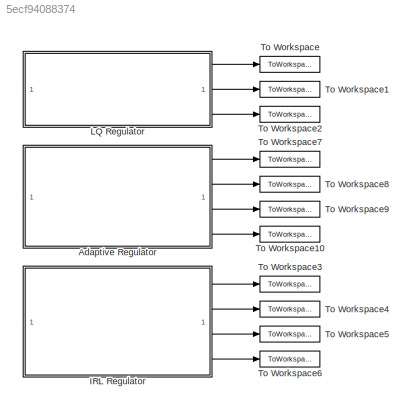
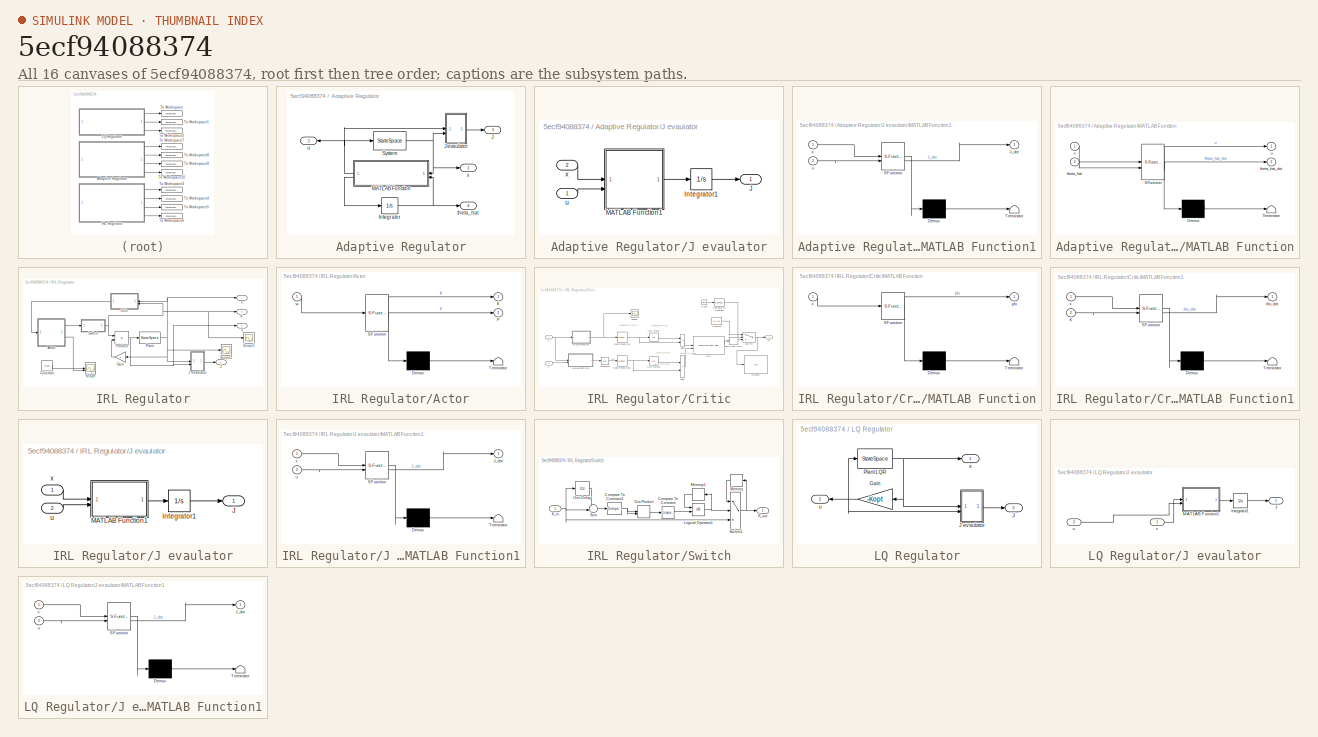
[diagram: thumbnail index - all 16 canvases of the model, root first then tree order]
MODEL slx_5ecf94088374
KIND model
CONFIG AbsTol = auto
CONFIG EnableMultiTasking = off
CONFIG FixedStep = 0.0001
CONFIG MaxStep = auto
CONFIG MinStep = auto
CONFIG RelTol = 1e-3
CONFIG SampleTimeConstraint = Unconstrained
CONFIG SolverName = FixedStepAuto
CONFIG StartTime = 0.0
CONFIG StopTime = 5
BLOCK [SubSystem] Adaptive Regulator
BLOCK [Integrator] Adaptive Regulator/Integrator
  InitialCondition = [0;0]
BLOCK [Outport] Adaptive Regulator/J
  Port = 3
BLOCK [SubSystem] Adaptive Regulator/J evaulator
BLOCK [Integrator] Adaptive Regulator/J evaulator/Integrator1
BLOCK [Outport] Adaptive Regulator/J evaulator/J
BLOCK [SubSystem] Adaptive Regulator/J evaulator/MATLAB Function1
  ErrorFcn = Stateflow.Translate.translate
  LibrarySourceBlock = simulink/User-Defined\nFunctions/MATLAB Function
  PermitHierarchicalResolution = ExplicitOnly
  SFBlockType = MATLAB Function
  TreatAsAtomicUnit = on
BLOCK [Demux] Adaptive Regulator/J evaulator/MATLAB Function1/ Demux 
  Outputs = 1
BLOCK [S-Function] Adaptive Regulator/J evaulator/MATLAB Function1/ SFunction 
  EnableBusSupport = on
  FunctionName = sf_sfun
  Parameters = Q,R
  PortCounts = [2 2]
  SFcnIsStateOwnerBlock = off
  SFunctionDeploymentMode = off
  Tag = Stateflow S-Function 7
BLOCK [Terminator] Adaptive Regulator/J evaulator/MATLAB Function1/ Terminator 
BLOCK [Outport] Adaptive Regulator/J evaulator/MATLAB Function1/J_dot
BLOCK [Inport] Adaptive Regulator/J evaulator/MATLAB Function1/u
  Port = 2
BLOCK [Inport] Adaptive Regulator/J evaulator/MATLAB Function1/x
BLOCK [Inport] Adaptive Regulator/J evaulator/u
BLOCK [Inport] Adaptive Regulator/J evaulator/x
  Port = 2
BLOCK [SubSystem] Adaptive Regulator/MATLAB Function
  ErrorFcn = Stateflow.Translate.translate
  LibrarySourceBlock = simulink/User-Defined\nFunctions/MATLAB Function
  NameLocation = top
  PermitHierarchicalResolution = ExplicitOnly
  SFBlockType = MATLAB Function
  TreatAsAtomicUnit = on
BLOCK [Demux] Adaptive Regulator/MATLAB Function/ Demux 
  Outputs = 1
BLOCK [S-Function] Adaptive Regulator/MATLAB Function/ SFunction 
  EnableBusSupport = on
  FunctionName = sf_sfun
  Parameters = B,Pa
  PortCounts = [2 3]
  SFcnIsStateOwnerBlock = off
  SFunctionDeploymentMode = off
  Tag = Stateflow S-Function 6
BLOCK [Terminator] Adaptive Regulator/MATLAB Function/ Terminator 
BLOCK [Inport] Adaptive Regulator/MATLAB Function/theta_hat
  Port = 2
BLOCK [Outport] Adaptive Regulator/MATLAB Function/theta_hat_dot
  Port = 2
BLOCK [Outport] Adaptive Regulator/MATLAB Function/u
BLOCK [Inport] Adaptive Regulator/MATLAB Function/x
BLOCK [StateSpace] Adaptive Regulator/System
  A = A
  B = B
  C = eye(2)
  D = [0;0]
  InitialCondition = [10;5]
BLOCK [Outport] Adaptive Regulator/theta_hat
  Port = 4
BLOCK [Outport] Adaptive Regulator/u
  NameLocation = top
  Port = 2
BLOCK [Outport] Adaptive Regulator/x
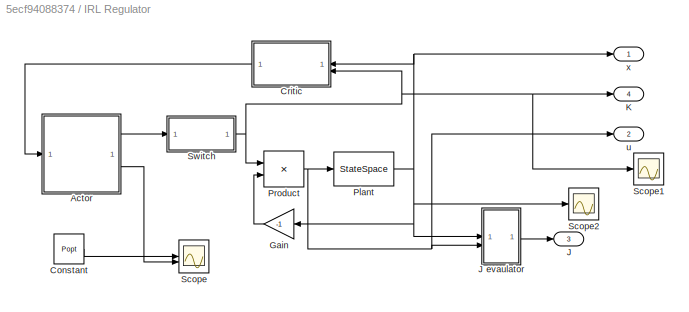
BLOCK [SubSystem] IRL Regulator
BLOCK [SubSystem] IRL Regulator/Actor
  ErrorFcn = Stateflow.Translate.translate
  PermitHierarchicalResolution = ExplicitOnly
  SFBlockType = MATLAB Function
  TreatAsAtomicUnit = on
BLOCK [Demux] IRL Regulator/Actor/ Demux 
  Outputs = 1
BLOCK [S-Function] IRL Regulator/Actor/ SFunction 
  EnableBusSupport = on
  FunctionName = sf_sfun
  Parameters = B,R
  PortCounts = [1 3]
  SFcnIsStateOwnerBlock = off
  SFunctionDeploymentMode = off
  Tag = Stateflow S-Function 1
BLOCK [Terminator] IRL Regulator/Actor/ Terminator 
BLOCK [Outport] IRL Regulator/Actor/K
BLOCK [Outport] IRL Regulator/Actor/P
  Port = 2
BLOCK [Inport] IRL Regulator/Actor/w
BLOCK [Constant] IRL Regulator/Constant
  Value = Popt
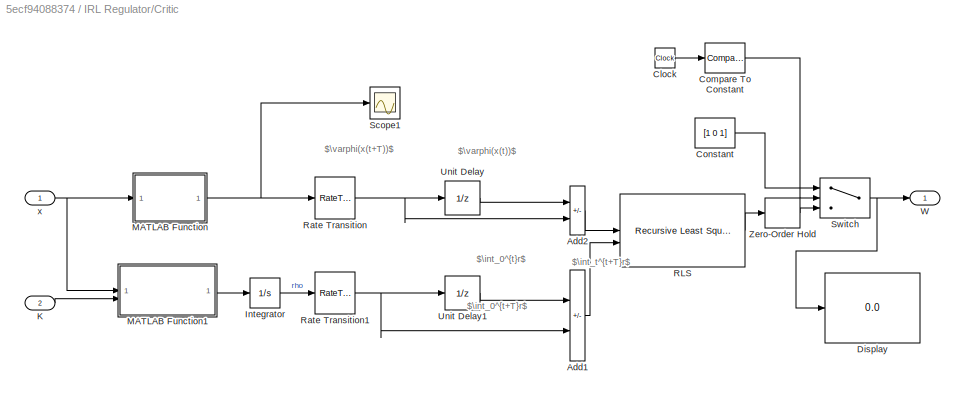
BLOCK [SubSystem] IRL Regulator/Critic
BLOCK [Sum] IRL Regulator/Critic/Add1
  IconShape = rectangular
  Inputs = -+
BLOCK [Sum] IRL Regulator/Critic/Add2
  IconShape = rectangular
  Inputs = +-
BLOCK [Clock] IRL Regulator/Critic/Clock
BLOCK [Reference] IRL Regulator/Critic/Compare To Constant  REF=simulink/Logic and Bit
Operations/Compare
To Constant
  SourceBlock = simulink/Logic and Bit\nOperations/Compare\nTo Constant
  SourceType = Compare To Constant
BLOCK [Constant] IRL Regulator/Critic/Constant
  Value = [1 0 1]
BLOCK [Display] IRL Regulator/Critic/Display
  Decimation = 1
BLOCK [Integrator] IRL Regulator/Critic/Integrator
BLOCK [Inport] IRL Regulator/Critic/K
  Port = 2
BLOCK [SubSystem] IRL Regulator/Critic/MATLAB Function
  ErrorFcn = Stateflow.Translate.translate
  PermitHierarchicalResolution = ExplicitOnly
  SFBlockType = MATLAB Function
  TreatAsAtomicUnit = on
BLOCK [Demux] IRL Regulator/Critic/MATLAB Function/ Demux 
  Outputs = 1
BLOCK [S-Function] IRL Regulator/Critic/MATLAB Function/ SFunction 
  EnableBusSupport = on
  FunctionName = sf_sfun
  PortCounts = [1 2]
  SFcnIsStateOwnerBlock = off
  SFunctionDeploymentMode = off
  Tag = Stateflow S-Function 2
BLOCK [Terminator] IRL Regulator/Critic/MATLAB Function/ Terminator 
BLOCK [Outport] IRL Regulator/Critic/MATLAB Function/phi
BLOCK [Inport] IRL Regulator/Critic/MATLAB Function/x
BLOCK [SubSystem] IRL Regulator/Critic/MATLAB Function1
  ErrorFcn = Stateflow.Translate.translate
  LibrarySourceBlock = simulink/User-Defined\nFunctions/MATLAB Function
  PermitHierarchicalResolution = ExplicitOnly
  SFBlockType = MATLAB Function
  TreatAsAtomicUnit = on
BLOCK [Demux] IRL Regulator/Critic/MATLAB Function1/ Demux 
  Outputs = 1
BLOCK [S-Function] IRL Regulator/Critic/MATLAB Function1/ SFunction 
  EnableBusSupport = on
  FunctionName = sf_sfun
  Parameters = Q,R
  PortCounts = [2 2]
  SFcnIsStateOwnerBlock = off
  SFunctionDeploymentMode = off
  Tag = Stateflow S-Function 3
BLOCK [Terminator] IRL Regulator/Critic/MATLAB Function1/ Terminator 
BLOCK [Inport] IRL Regulator/Critic/MATLAB Function1/K
  Port = 2
BLOCK [Outport] IRL Regulator/Critic/MATLAB Function1/rho_dot
BLOCK [Inport] IRL Regulator/Critic/MATLAB Function1/x
BLOCK [Reference] IRL Regulator/Critic/RLS  REF=ctrlSharedLib/Recursive Least Squares Estimator
  SourceBlock = ctrlSharedLib/Recursive Least Squares Estimator
  SourceType = idEstimatorsRLS
BLOCK [RateTransition] IRL Regulator/Critic/Rate Transition
  InitialCondition = [100,60,9]
  OutPortSampleTime = T
BLOCK [RateTransition] IRL Regulator/Critic/Rate Transition1
  OutPortSampleTime = T
BLOCK [Scope] IRL Regulator/Critic/Scope1
  Floating = off
  NumInputPorts = 1
  ScopeSpecificationString = Simulink.scopes.TimeScopeBlockCfg('CurrentConfiguration', extmgr.ConfigurationSet(extmgr.Configuration('Core','General UI',true),extmgr.Configuration('Core','Source UI',true),extmgr.Configuration('Sources','WiredSimulink',true,'DataLoggingVariableName','ScopeData2'),extmgr.Configuration('Visuals','Time Domain',true,'SerializedDisplays',{struct('MinYLimReal','-15.09014','MaxYLimReal','225.81129','Y...<+1476ch>
BLOCK [Switch] IRL Regulator/Critic/Switch
  Criteria = u2 > Threshold
  InputSameDT = off
  SaturateOnIntegerOverflow = off
BLOCK [UnitDelay] IRL Regulator/Critic/Unit Delay
  HasFrameUpgradeWarning = on
  InitialCondition = [100,60,9]
  SampleTime = T
BLOCK [UnitDelay] IRL Regulator/Critic/Unit Delay1
  HasFrameUpgradeWarning = on
  SampleTime = T
BLOCK [Outport] IRL Regulator/Critic/W
BLOCK [ZeroOrderHold] IRL Regulator/Critic/Zero-Order Hold
  SampleTime = 4*T
BLOCK [Inport] IRL Regulator/Critic/x
BLOCK [Gain] IRL Regulator/Gain
  Gain = -1
  NameLocation = top
BLOCK [Outport] IRL Regulator/J
  Port = 3
BLOCK [SubSystem] IRL Regulator/J evaulator
BLOCK [Integrator] IRL Regulator/J evaulator/Integrator1
BLOCK [Outport] IRL Regulator/J evaulator/J
BLOCK [SubSystem] IRL Regulator/J evaulator/MATLAB Function1
  ErrorFcn = Stateflow.Translate.translate
  LibrarySourceBlock = simulink/User-Defined\nFunctions/MATLAB Function
  PermitHierarchicalResolution = ExplicitOnly
  SFBlockType = MATLAB Function
  TreatAsAtomicUnit = on
BLOCK [Demux] IRL Regulator/J evaulator/MATLAB Function1/ Demux 
  Outputs = 1
BLOCK [S-Function] IRL Regulator/J evaulator/MATLAB Function1/ SFunction 
  EnableBusSupport = on
  FunctionName = sf_sfun
  Parameters = Q,R
  PortCounts = [2 2]
  SFcnIsStateOwnerBlock = off
  SFunctionDeploymentMode = off
  Tag = Stateflow S-Function 4
BLOCK [Terminator] IRL Regulator/J evaulator/MATLAB Function1/ Terminator 
BLOCK [Outport] IRL Regulator/J evaulator/MATLAB Function1/J_dot
BLOCK [Inport] IRL Regulator/J evaulator/MATLAB Function1/u
  Port = 2
BLOCK [Inport] IRL Regulator/J evaulator/MATLAB Function1/x
BLOCK [Inport] IRL Regulator/J evaulator/u
  Port = 2
BLOCK [Inport] IRL Regulator/J evaulator/x
BLOCK [Outport] IRL Regulator/K
  Port = 4
BLOCK [StateSpace] IRL Regulator/Plant
  A = A
  B = B
  C = eye(2)
  D = [0;0]
  InitialCondition = [10;5]
  ParameterTunability = Unconstrained
BLOCK [Product] IRL Regulator/Product
  Multiplication = Matrix(*)
BLOCK [Scope] IRL Regulator/Scope
  Floating = off
  NumInputPorts = 2
  ScopeSpecificationString = Simulink.scopes.TimeScopeBlockCfg('CurrentConfiguration', extmgr.ConfigurationSet(extmgr.Configuration('Core','General UI',true),extmgr.Configuration('Core','Source UI',true),extmgr.Configuration('Sources','WiredSimulink',true,'DataLoggingVariableName','ScopeData2'),extmgr.Configuration('Visuals','Time Domain',true,'SerializedDisplays',{struct('MinYLimReal','-13166061880421.89062','MaxYLimReal','2...<+1818ch>
BLOCK [Scope] IRL Regulator/Scope1
  Floating = off
  NumInputPorts = 1
  ScopeSpecificationString = Simulink.scopes.TimeScopeBlockCfg('CurrentConfiguration', extmgr.ConfigurationSet(extmgr.Configuration('Core','General UI',true),extmgr.Configuration('Core','Source UI',true),extmgr.Configuration('Sources','WiredSimulink',true,'DataLoggingVariableName','ScopeData1'),extmgr.Configuration('Visuals','Time Domain',true,'SerializedDisplays',{struct('MinYLimReal','-0.04167','MaxYLimReal','2.79924','YLab...<+1403ch>
BLOCK [Scope] IRL Regulator/Scope2
  Floating = off
  NumInputPorts = 1
  ScopeSpecificationString = Simulink.scopes.TimeScopeBlockCfg('CurrentConfiguration', extmgr.ConfigurationSet(extmgr.Configuration('Core','General UI',true),extmgr.Configuration('Core','Source UI',true),extmgr.Configuration('Sources','WiredSimulink',true,'DataLoggingVariableName','ScopeData2'),extmgr.Configuration('Visuals','Time Domain',true,'SerializedDisplays',{struct('MinYLimReal','-1.24716','MaxYLimReal','11.24968','YLa...<+1405ch>
BLOCK [SubSystem] IRL Regulator/Switch
BLOCK [Reference] IRL Regulator/Switch/Compare To Constant  REF=simulink/Logic and Bit
Operations/Compare
To Constant
  SourceBlock = simulink/Logic and Bit\nOperations/Compare\nTo Constant
  SourceType = Compare To Constant
BLOCK [Reference] IRL Regulator/Switch/Compare To Constant1  REF=simulink/Logic and Bit
Operations/Compare
To Constant
  SourceBlock = simulink/Logic and Bit\nOperations/Compare\nTo Constant
  SourceType = Compare To Constant
BLOCK [DotProduct] IRL Regulator/Switch/Dot Product
  OutDataTypeStr = Inherit: Inherit via internal rule
BLOCK [Inport] IRL Regulator/Switch/K_in
BLOCK [Outport] IRL Regulator/Switch/K_out
BLOCK [Logic] IRL Regulator/Switch/Logical Operator1
  AllPortsSameDT = off
  Operator = OR
  OutDataTypeStr = boolean
BLOCK [Memory] IRL Regulator/Switch/Memory
  NameLocation = top
BLOCK [Memory] IRL Regulator/Switch/Memory1
BLOCK [Sum] IRL Regulator/Switch/Sum
  Inputs = -+|
BLOCK [Switch] IRL Regulator/Switch/Switch1
  Criteria = u2 > Threshold
  InputSameDT = off
  SaturateOnIntegerOverflow = off
BLOCK [UnitDelay] IRL Regulator/Switch/Unit Delay
  HasFrameUpgradeWarning = on
  SampleTime = 3*4*T
BLOCK [Outport] IRL Regulator/u
  Port = 2
BLOCK [Outport] IRL Regulator/x
BLOCK [SubSystem] LQ Regulator
BLOCK [Gain] LQ Regulator/Gain
  Gain = -Kopt
  Multiplication = Matrix(K*u)
  NameLocation = top
BLOCK [Outport] LQ Regulator/J
  Port = 3
BLOCK [SubSystem] LQ Regulator/J evaulator
BLOCK [Integrator] LQ Regulator/J evaulator/Integrator1
BLOCK [Outport] LQ Regulator/J evaulator/J
BLOCK [SubSystem] LQ Regulator/J evaulator/MATLAB Function1
  ErrorFcn = Stateflow.Translate.translate
  LibrarySourceBlock = simulink/User-Defined\nFunctions/MATLAB Function
  PermitHierarchicalResolution = ExplicitOnly
  SFBlockType = MATLAB Function
  TreatAsAtomicUnit = on
BLOCK [Demux] LQ Regulator/J evaulator/MATLAB Function1/ Demux 
  Outputs = 1
BLOCK [S-Function] LQ Regulator/J evaulator/MATLAB Function1/ SFunction 
  EnableBusSupport = on
  FunctionName = sf_sfun
  Parameters = Q,R
  PortCounts = [2 2]
  SFcnIsStateOwnerBlock = off
  SFunctionDeploymentMode = off
  Tag = Stateflow S-Function 5
BLOCK [Terminator] LQ Regulator/J evaulator/MATLAB Function1/ Terminator 
BLOCK [Outport] LQ Regulator/J evaulator/MATLAB Function1/J_dot
BLOCK [Inport] LQ Regulator/J evaulator/MATLAB Function1/u
  Port = 2
BLOCK [Inport] LQ Regulator/J evaulator/MATLAB Function1/x
BLOCK [Inport] LQ Regulator/J evaulator/u
  Port = 2
BLOCK [Inport] LQ Regulator/J evaulator/x
BLOCK [StateSpace] LQ Regulator/Plant LQR
  A = A
  B = B
  C = eye(2)
  D = [0;0]
  InitialCondition = [10;5]
BLOCK [Outport] LQ Regulator/u
  NameLocation = top
  Port = 2
BLOCK [Outport] LQ Regulator/x
BLOCK [ToWorkspace] To Workspace
  FixptAsFi = on
  MaxDataPoints = inf
  SampleTime = -1
  SaveFormat = Timeseries
  VariableName = LQRx
BLOCK [ToWorkspace] To Workspace1
  FixptAsFi = on
  MaxDataPoints = inf
  SampleTime = -1
  SaveFormat = Timeseries
  VariableName = LQRu
BLOCK [ToWorkspace] To Workspace10
  FixptAsFi = on
  MaxDataPoints = inf
  SampleTime = -1
  SaveFormat = Timeseries
  VariableName = ARt
BLOCK [ToWorkspace] To Workspace2
  FixptAsFi = on
  MaxDataPoints = inf
  SampleTime = -1
  SaveFormat = Timeseries
  VariableName = LQRJ
BLOCK [ToWorkspace] To Workspace3
  FixptAsFi = on
  MaxDataPoints = inf
  SampleTime = -1
  SaveFormat = Timeseries
  VariableName = IRLx
BLOCK [ToWorkspace] To Workspace4
  FixptAsFi = on
  MaxDataPoints = inf
  SampleTime = -1
  SaveFormat = Timeseries
  VariableName = IRLu
BLOCK [ToWorkspace] To Workspace5
  FixptAsFi = on
  MaxDataPoints = inf
  SampleTime = -1
  SaveFormat = Timeseries
  VariableName = IRLJ
BLOCK [ToWorkspace] To Workspace6
  FixptAsFi = on
  MaxDataPoints = inf
  NameLocation = top
  SampleTime = -1
  SaveFormat = Timeseries
  VariableName = IRLK
BLOCK [ToWorkspace] To Workspace7
  FixptAsFi = on
  MaxDataPoints = inf
  SampleTime = -1
  SaveFormat = Timeseries
  VariableName = ARx
BLOCK [ToWorkspace] To Workspace8
  FixptAsFi = on
  MaxDataPoints = inf
  SampleTime = -1
  SaveFormat = Timeseries
  VariableName = ARu
BLOCK [ToWorkspace] To Workspace9
  FixptAsFi = on
  MaxDataPoints = inf
  SampleTime = -1
  SaveFormat = Timeseries
  VariableName = ARJ
ANNOTATION IRL Regulator/Critic: $\int_0^{t+T}r$
ANNOTATION IRL Regulator/Critic: $\int_0^{t}r$
ANNOTATION IRL Regulator/Critic: $\int_t^{t+T}r$
ANNOTATION IRL Regulator/Critic: $\varphi(x(t))$
ANNOTATION IRL Regulator/Critic: $\varphi(x(t+T))$
NET Adaptive Regulator/Integrator:1 -> Adaptive Regulator/MATLAB Function:2, Adaptive Regulator/theta_hat:1
LINE Adaptive Regulator/J evaulator/Integrator1:1 -> Adaptive Regulator/J evaulator/J:1
LINE Adaptive Regulator/J evaulator/MATLAB Function1:1 -> Adaptive Regulator/J evaulator/Integrator1:1
LINE Adaptive Regulator/J evaulator/u:1 -> Adaptive Regulator/J evaulator/MATLAB Function1:2
LINE Adaptive Regulator/J evaulator/x:1 -> Adaptive Regulator/J evaulator/MATLAB Function1:1
LINE Adaptive Regulator/J evaulator:1 -> Adaptive Regulator/J:1
NET Adaptive Regulator/MATLAB Function:1 -> Adaptive Regulator/J evaulator:1, Adaptive Regulator/System:1, Adaptive Regulator/u:1
LINE Adaptive Regulator/MATLAB Function:2 -> Adaptive Regulator/Integrator:1
NET Adaptive Regulator/System:1 -> Adaptive Regulator/J evaulator:2, Adaptive Regulator/MATLAB Function:1, Adaptive Regulator/x:1
LINE Adaptive Regulator:1 -> To Workspace7:1
LINE Adaptive Regulator:2 -> To Workspace8:1
LINE Adaptive Regulator:3 -> To Workspace9:1
LINE Adaptive Regulator:4 -> To Workspace10:1
LINE IRL Regulator/Actor:1 -> IRL Regulator/Switch:1
LINE IRL Regulator/Actor:2 -> IRL Regulator/Scope:2
LINE IRL Regulator/Constant:1 -> IRL Regulator/Scope:1
LINE IRL Regulator/Critic/Add1:1 -> IRL Regulator/Critic/RLS:2
LINE IRL Regulator/Critic/Add2:1 -> IRL Regulator/Critic/RLS:1
LINE IRL Regulator/Critic/Clock:1 -> IRL Regulator/Critic/Compare To Constant:1
LINE IRL Regulator/Critic/Compare To Constant:1 -> IRL Regulator/Critic/Switch:2
LINE IRL Regulator/Critic/Constant:1 -> IRL Regulator/Critic/Switch:1
LINE IRL Regulator/Critic/Integrator:1 -> IRL Regulator/Critic/Rate Transition1:1
LINE IRL Regulator/Critic/K:1 -> IRL Regulator/Critic/MATLAB Function1:2
LINE IRL Regulator/Critic/MATLAB Function1:1 -> IRL Regulator/Critic/Integrator:1
NET IRL Regulator/Critic/MATLAB Function:1 -> IRL Regulator/Critic/Rate Transition:1, IRL Regulator/Critic/Scope1:1
LINE IRL Regulator/Critic/RLS:1 -> IRL Regulator/Critic/Zero-Order Hold:1
NET IRL Regulator/Critic/Rate Transition1:1 -> IRL Regulator/Critic/Add1:2, IRL Regulator/Critic/Unit Delay1:1
NET IRL Regulator/Critic/Rate Transition:1 -> IRL Regulator/Critic/Add2:2, IRL Regulator/Critic/Unit Delay:1
NET IRL Regulator/Critic/Switch:1 -> IRL Regulator/Critic/Display:1, IRL Regulator/Critic/W:1
LINE IRL Regulator/Critic/Unit Delay1:1 -> IRL Regulator/Critic/Add1:1
LINE IRL Regulator/Critic/Unit Delay:1 -> IRL Regulator/Critic/Add2:1
LINE IRL Regulator/Critic/Zero-Order Hold:1 -> IRL Regulator/Critic/Switch:3
NET IRL Regulator/Critic/x:1 -> IRL Regulator/Critic/MATLAB Function1:1, IRL Regulator/Critic/MATLAB Function:1
LINE IRL Regulator/Critic:1 -> IRL Regulator/Actor:1
LINE IRL Regulator/Gain:1 -> IRL Regulator/Product:2
LINE IRL Regulator/J evaulator/Integrator1:1 -> IRL Regulator/J evaulator/J:1
LINE IRL Regulator/J evaulator/MATLAB Function1:1 -> IRL Regulator/J evaulator/Integrator1:1
LINE IRL Regulator/J evaulator/u:1 -> IRL Regulator/J evaulator/MATLAB Function1:2
LINE IRL Regulator/J evaulator/x:1 -> IRL Regulator/J evaulator/MATLAB Function1:1
LINE IRL Regulator/J evaulator:1 -> IRL Regulator/J:1
NET IRL Regulator/Plant:1 -> IRL Regulator/Critic:1, IRL Regulator/Gain:1, IRL Regulator/J evaulator:1, IRL Regulator/Scope2:1, IRL Regulator/x:1
NET IRL Regulator/Product:1 -> IRL Regulator/J evaulator:2, IRL Regulator/Plant:1, IRL Regulator/u:1
NET IRL Regulator/Switch/Compare To Constant1:1 -> IRL Regulator/Switch/Dot Product:1, IRL Regulator/Switch/Dot Product:2
LINE IRL Regulator/Switch/Compare To Constant:1 -> IRL Regulator/Switch/Logical Operator1:2
LINE IRL Regulator/Switch/Dot Product:1 -> IRL Regulator/Switch/Compare To Constant:1
NET IRL Regulator/Switch/K_in:1 -> IRL Regulator/Switch/Sum:2, IRL Regulator/Switch/Switch1:3, IRL Regulator/Switch/Unit Delay:1
NET IRL Regulator/Switch/Logical Operator1:1 -> IRL Regulator/Switch/Memory1:1, IRL Regulator/Switch/Switch1:2
LINE IRL Regulator/Switch/Memory1:1 -> IRL Regulator/Switch/Logical Operator1:1
LINE IRL Regulator/Switch/Memory:1 -> IRL Regulator/Switch/Switch1:1
LINE IRL Regulator/Switch/Sum:1 -> IRL Regulator/Switch/Compare To Constant1:1
NET IRL Regulator/Switch/Switch1:1 -> IRL Regulator/Switch/K_out:1, IRL Regulator/Switch/Memory:1
LINE IRL Regulator/Switch/Unit Delay:1 -> IRL Regulator/Switch/Sum:1
NET IRL Regulator/Switch:1 -> IRL Regulator/Critic:2, IRL Regulator/K:1, IRL Regulator/Product:1, IRL Regulator/Scope1:1
LINE IRL Regulator:1 -> To Workspace3:1
LINE IRL Regulator:2 -> To Workspace4:1
LINE IRL Regulator:3 -> To Workspace5:1
LINE IRL Regulator:4 -> To Workspace6:1
NET LQ Regulator/Gain:1 -> LQ Regulator/J evaulator:2, LQ Regulator/Plant LQR:1, LQ Regulator/u:1
LINE LQ Regulator/J evaulator/Integrator1:1 -> LQ Regulator/J evaulator/J:1
LINE LQ Regulator/J evaulator/MATLAB Function1:1 -> LQ Regulator/J evaulator/Integrator1:1
LINE LQ Regulator/J evaulator/u:1 -> LQ Regulator/J evaulator/MATLAB Function1:2
LINE LQ Regulator/J evaulator/x:1 -> LQ Regulator/J evaulator/MATLAB Function1:1
LINE LQ Regulator/J evaulator:1 -> LQ Regulator/J:1
NET LQ Regulator/Plant LQR:1 -> LQ Regulator/Gain:1, LQ Regulator/J evaulator:1, LQ Regulator/x:1
LINE LQ Regulator:1 -> To Workspace:1
LINE LQ Regulator:2 -> To Workspace1:1
LINE LQ Regulator:3 -> To Workspace2:1
note: NET lines group one-source signal fan-out (src -> all destinations, sorted); 1:1 wires keep LINE
CHART IRL Regulator/Actor states=1 transitions=1
  STATE_LABEL 'eML_blk_kernel()'
  STATE_LABEL "SCRIPT:\nfunction [K, P] = fcn(w, R, B)\n\nP = [w(1), w(2);\n     w(2), w(3)];\n\nK = R \\ B' * P;"
CHART IRL Regulator/Critic/MATLAB Function states=1 transitions=1
  STATE_LABEL 'eML_blk_kernel()'
  STATE_LABEL 'SCRIPT:\nfunction phi = fcn(x)\n\nphi11 = x(1)*x(1);\nphi12 = x(1)*x(2);\nphi22 = x(2)*x(2);\n\nphi = [phi11 2*phi12 phi22];\n\n'
CHART IRL Regulator/Critic/MATLAB Function1 states=1 transitions=1
  STATE_LABEL 'eML_blk_kernel()'
  STATE_LABEL "SCRIPT:\nfunction rho_dot = fcn(x, K, R, Q)\n\nrho_dot = x' * (Q + K' * R * K) * x;\n"
CHART IRL Regulator/J evaulator/MATLAB Function1 states=1 transitions=1
  STATE_LABEL 'eML_blk_kernel()'
  STATE_LABEL "SCRIPT:\nfunction J_dot = fcn(x,u,Q,R)\n\nJ_dot = x' * Q * x + u' * R * u;\n"
CHART LQ Regulator/J evaulator/MATLAB Function1 states=1 transitions=1
  STATE_LABEL 'eML_blk_kernel()'
  STATE_LABEL "SCRIPT:\nfunction J_dot = fcn(x,u,Q,R)\n\nJ_dot = x' * Q * x + u' * R * u;\n"
CHART Adaptive Regulator/MATLAB Function states=1 transitions=1
  STATE_LABEL 'eML_blk_kernel()'
  STATE_LABEL "SCRIPT:\nfunction [u, theta_hat_dot] = fcn(x,theta_hat,B, Pa)\ngamma = 1;\ntheta_hat_dot = gamma * x * B' * Pa * x;\nu = -theta_hat' * x;\n"
CHART Adaptive Regulator/J evaulator/MATLAB Function1 states=1 transitions=1
  STATE_LABEL 'eML_blk_kernel()'
  STATE_LABEL "SCRIPT:\nfunction J_dot = fcn(x,u,Q,R)\n\nJ_dot = x' * Q * x + u' * R * u;\n"
CHART  states=0 transitions=0
CHART  states=0 transitions=0
CHART  states=0 transitions=0
CHART  states=0 transitions=0
CHART  states=0 transitions=0
CHART  states=0 transitions=0
CHART  states=0 transitions=0
